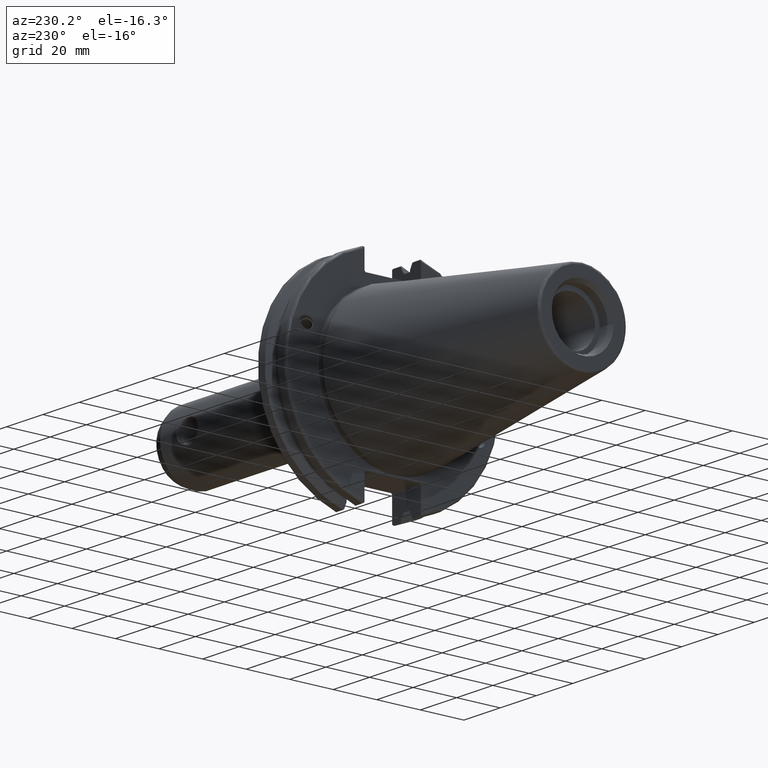
[diagram: clean part render]
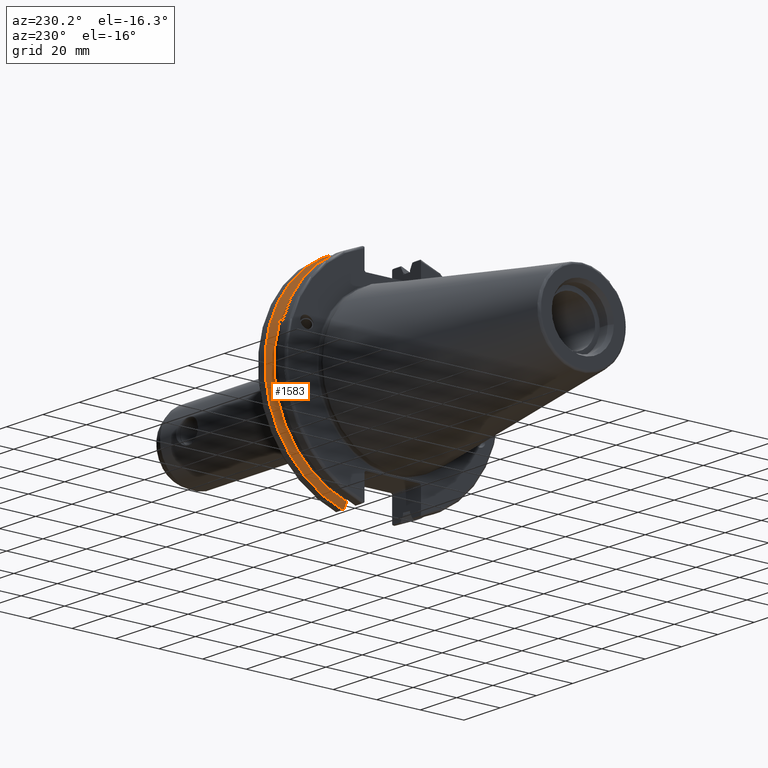
[diagram: same view with one face highlighted and labeled with its STEP entity id]
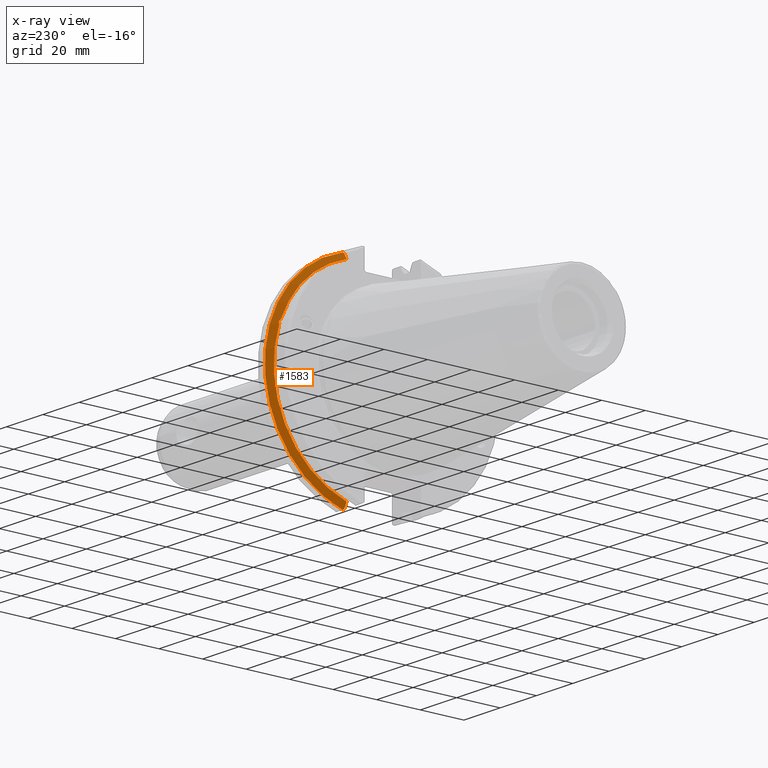
[diagram: x-ray of the same camera — body ghosted, the highlighted face saturated]
A machine part, auxiliary view. The second image highlights one B-rep face of the part: STEP entity #1583.
The next image is the same camera in x-ray: the body ghosted, the highlighted face saturated — about 0% of this face is hidden behind the body in this view.
In plain terms, the highlighted conical surface has half-angle 60 deg.
Its self-contained STEP definition (entity closure, byte-faithful):
#23=(
BOUNDED_CURVE()
B_SPLINE_CURVE(2,(#3014,#3015,#3016),.UNSPECIFIED.,.F.,.F.)
B_SPLINE_CURVE_WITH_KNOTS((3,3),(0.325260944932521,0.390084992222202),
 .UNSPECIFIED.)
CURVE()
GEOMETRIC_REPRESENTATION_ITEM()
RATIONAL_B_SPLINE_CURVE((1.00019140645994,1.00011477674864,1.))
REPRESENTATION_ITEM('')
);
#24=(
BOUNDED_CURVE()
B_SPLINE_CURVE(2,(#3028,#3029,#3030),.UNSPECIFIED.,.F.,.F.)
B_SPLINE_CURVE_WITH_KNOTS((3,3),(0.0558332664532001,0.331657177124504),
 .UNSPECIFIED.)
CURVE()
GEOMETRIC_REPRESENTATION_ITEM()
RATIONAL_B_SPLINE_CURVE((1.00012873636632,1.00038235574022,1.))
REPRESENTATION_ITEM('')
);
#29=(
BOUNDED_CURVE()
B_SPLINE_CURVE(2,(#3193,#3194,#3195),.UNSPECIFIED.,.F.,.F.)
B_SPLINE_CURVE_WITH_KNOTS((3,3),(0.,0.275823910671402),.UNSPECIFIED.)
CURVE()
GEOMETRIC_REPRESENTATION_ITEM()
RATIONAL_B_SPLINE_CURVE((1.,1.00038235574129,1.00012873636668))
REPRESENTATION_ITEM('')
);
#30=(
BOUNDED_CURVE()
B_SPLINE_CURVE(2,(#3210,#3211,#3212),.UNSPECIFIED.,.F.,.F.)
B_SPLINE_CURVE_WITH_KNOTS((3,3),(0.,0.0648240472897064),.UNSPECIFIED.)
CURVE()
GEOMETRIC_REPRESENTATION_ITEM()
RATIONAL_B_SPLINE_CURVE((1.,1.00011477674844,1.00019140645961))
REPRESENTATION_ITEM('')
);
#54=CONICAL_SURFACE('',#1768,47.8172386482472,1.0471975511966);
#190=FACE_OUTER_BOUND('',#297,.T.);
#297=EDGE_LOOP('',(#1421,#1422,#1423,#1424,#1425,#1426,#1427,#1428,#1429));
#333=B_SPLINE_CURVE_WITH_KNOTS('',3,(#2803,#2804,#2805,#2806,#2807,#2808,
#2809,#2810),.UNSPECIFIED.,.F.,.F.,(4,2,2,4),(0.426712868358719,0.441644498666905,
0.480313313223129,0.518982127779353),.UNSPECIFIED.);
#337=B_SPLINE_CURVE_WITH_KNOTS('',3,(#2865,#2866,#2867,#2868,#2869,#2870,
#2871,#2872),.UNSPECIFIED.,.F.,.F.,(4,2,2,4),(0.518982127779353,0.557650942335576,
0.5963197568918,0.611251387199989),.UNSPECIFIED.);
#585=CIRCLE('',#1697,46.4219772964944);
#611=CIRCLE('',#1761,49.2125);
#614=CIRCLE('',#1769,46.4219772964944);
#696=VERTEX_POINT('',#2800);
#697=VERTEX_POINT('',#2802);
#704=VERTEX_POINT('',#2863);
#713=VERTEX_POINT('',#2904);
#743=VERTEX_POINT('',#3011);
#744=VERTEX_POINT('',#3013);
#769=VERTEX_POINT('',#3190);
#770=VERTEX_POINT('',#3192);
#773=VERTEX_POINT('',#3208);
#876=EDGE_CURVE('',#697,#696,#333,.T.);
#884=EDGE_CURVE('',#696,#704,#337,.T.);
#896=EDGE_CURVE('',#713,#697,#585,.T.);
#937=EDGE_CURVE('',#743,#744,#23,.T.);
#942=EDGE_CURVE('',#743,#713,#24,.T.);
#987=EDGE_CURVE('',#770,#769,#29,.T.);
#995=EDGE_CURVE('',#773,#769,#30,.T.);
#996=EDGE_CURVE('',#744,#773,#611,.T.);
#1002=EDGE_CURVE('',#704,#770,#614,.T.);
#1421=ORIENTED_EDGE('',*,*,#876,.T.);
#1422=ORIENTED_EDGE('',*,*,#884,.T.);
#1423=ORIENTED_EDGE('',*,*,#1002,.T.);
#1424=ORIENTED_EDGE('',*,*,#987,.T.);
#1425=ORIENTED_EDGE('',*,*,#995,.F.);
#1426=ORIENTED_EDGE('',*,*,#996,.F.);
#1427=ORIENTED_EDGE('',*,*,#937,.F.);
#1428=ORIENTED_EDGE('',*,*,#942,.T.);
#1429=ORIENTED_EDGE('',*,*,#896,.T.);
#1583=ADVANCED_FACE('',(#190),#54,.T.);
#1697=AXIS2_PLACEMENT_3D('',#2905,#1986,#1987);
#1761=AXIS2_PLACEMENT_3D('',#3214,#2163,#2164);
#1768=AXIS2_PLACEMENT_3D('',#3227,#2180,#2181);
#1769=AXIS2_PLACEMENT_3D('',#3228,#2182,#2183);
#1986=DIRECTION('center_axis',(1.,0.,0.));
#1987=DIRECTION('ref_axis',(0.,0.,-1.));
#2163=DIRECTION('center_axis',(1.,0.,0.));
#2164=DIRECTION('ref_axis',(0.,0.,-1.));
#2180=DIRECTION('center_axis',(1.,0.,0.));
#2181=DIRECTION('ref_axis',(0.,1.,0.));
#2182=DIRECTION('center_axis',(1.,0.,0.));
#2183=DIRECTION('ref_axis',(0.,0.,-1.));
#2800=CARTESIAN_POINT('',(13.2341,43.923494649906,15.9868446375166));
#2802=CARTESIAN_POINT('',(13.0491,43.9096390749305,15.0646464421033));
#2803=CARTESIAN_POINT('Ctrl Pts',(13.0491,43.9096390749305,15.0646464421033));
#2804=CARTESIAN_POINT('Ctrl Pts',(13.0660815609661,43.9250360001461,15.1104047527575));
#2805=CARTESIAN_POINT('Ctrl Pts',(13.0821132459668,43.9385582852181,15.1564111356409));
#2806=CARTESIAN_POINT('Ctrl Pts',(13.1358132615496,43.9797830409459,15.3217566390709));
#2807=CARTESIAN_POINT('Ctrl Pts',(13.1719838933644,43.9989016655819,15.4570249042868));
#2808=CARTESIAN_POINT('Ctrl Pts',(13.2212913174802,43.9931221605126,15.7289849146254));
#2809=CARTESIAN_POINT('Ctrl Pts',(13.2341,43.9675796948952,15.8657219718732));
#2810=CARTESIAN_POINT('Ctrl Pts',(13.2341,43.923494649906,15.9868446375166));
#2863=CARTESIAN_POINT('',(13.0491,43.3201030900029,16.684383248648));
#2865=CARTESIAN_POINT('Ctrl Pts',(13.2341,43.923494649906,15.9868446375166));
#2866=CARTESIAN_POINT('Ctrl Pts',(13.2341,43.8794096049169,16.10796730316));
#2867=CARTESIAN_POINT('Ctrl Pts',(13.2212913174802,43.8110833825827,16.2291323464527));
#2868=CARTESIAN_POINT('Ctrl Pts',(13.1719838933644,43.6406982153492,16.441180795372));
#2869=CARTESIAN_POINT('Ctrl Pts',(13.1358132615496,43.5391037343221,16.5325130832406));
#2870=CARTESIAN_POINT('Ctrl Pts',(13.0821132459668,43.4012416983557,16.6326763251437));
#2871=CARTESIAN_POINT('Ctrl Pts',(13.0660815609661,43.3613106941341,16.6592273018006));
#2872=CARTESIAN_POINT('Ctrl Pts',(13.0491,43.3201030900029,16.684383248648));
#2904=CARTESIAN_POINT('',(13.0491,12.95,-44.5791147973605));
#2905=CARTESIAN_POINT('Origin',(13.0491,0.,0.));
#3011=CARTESIAN_POINT('',(14.3818103943757,12.95,-46.9780755322918));
#3013=CARTESIAN_POINT('',(14.6602090340487,13.4317035994433,-47.3440544806494));
#3014=CARTESIAN_POINT('Ctrl Pts',(14.3818103943757,12.95,-46.9780755322918));
#3015=CARTESIAN_POINT('Ctrl Pts',(14.5199310333617,13.1896660169965,-47.1601640966264));
#3016=CARTESIAN_POINT('Ctrl Pts',(14.6602090340487,13.4317035994433,-47.3440544806494));
#3028=CARTESIAN_POINT('Ctrl Pts',(14.3818103943757,12.95,-46.9780755322918));
#3029=CARTESIAN_POINT('Ctrl Pts',(13.6979955094851,12.95,-45.7494966802933));
#3030=CARTESIAN_POINT('Ctrl Pts',(13.0491,12.95,-44.5791147973604));
#3190=CARTESIAN_POINT('',(14.3818103943757,12.95,46.9780755322918));
#3192=CARTESIAN_POINT('',(13.0491,12.95,44.5791147973604));
#3193=CARTESIAN_POINT('Ctrl Pts',(13.0491,12.95,44.5791147973604));
#3194=CARTESIAN_POINT('Ctrl Pts',(13.6979955094846,12.95,45.7494966802924));
#3195=CARTESIAN_POINT('Ctrl Pts',(14.3818103943757,12.95,46.9780755322918));
#3208=CARTESIAN_POINT('',(14.6602090340487,13.4317035994433,47.3440544806494));
#3210=CARTESIAN_POINT('Ctrl Pts',(14.6602090340487,13.4317035994433,47.3440544806494));
#3211=CARTESIAN_POINT('Ctrl Pts',(14.5199310333618,13.1896660169966,47.1601640966264));
#3212=CARTESIAN_POINT('Ctrl Pts',(14.3818103943757,12.95,46.9780755322918));
#3214=CARTESIAN_POINT('Origin',(14.6602090340487,0.,0.));
#3227=CARTESIAN_POINT('Origin',(13.8546545170244,0.,0.));
#3228=CARTESIAN_POINT('Origin',(13.0491,0.,0.));